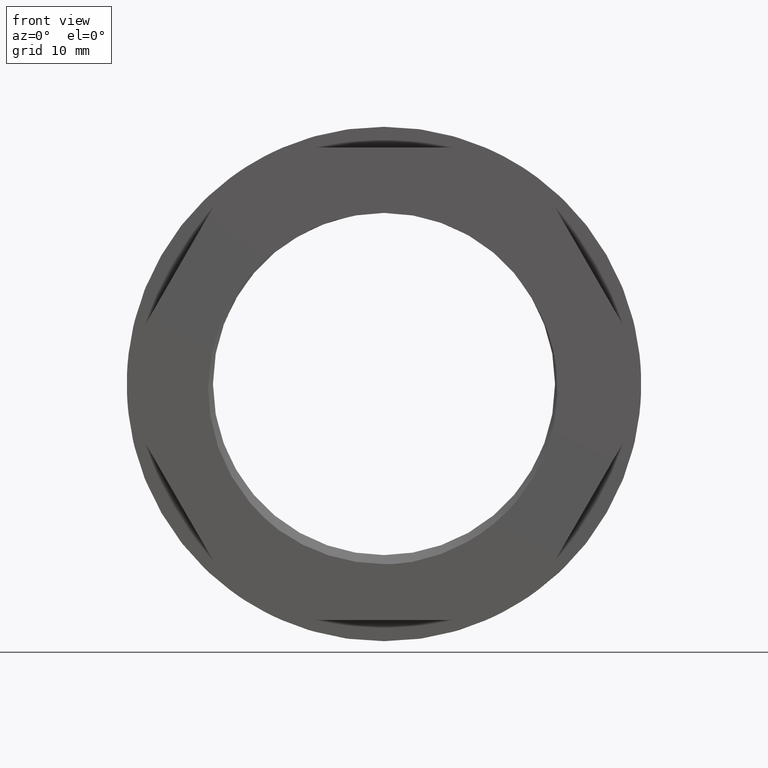
[diagram: clean part render]
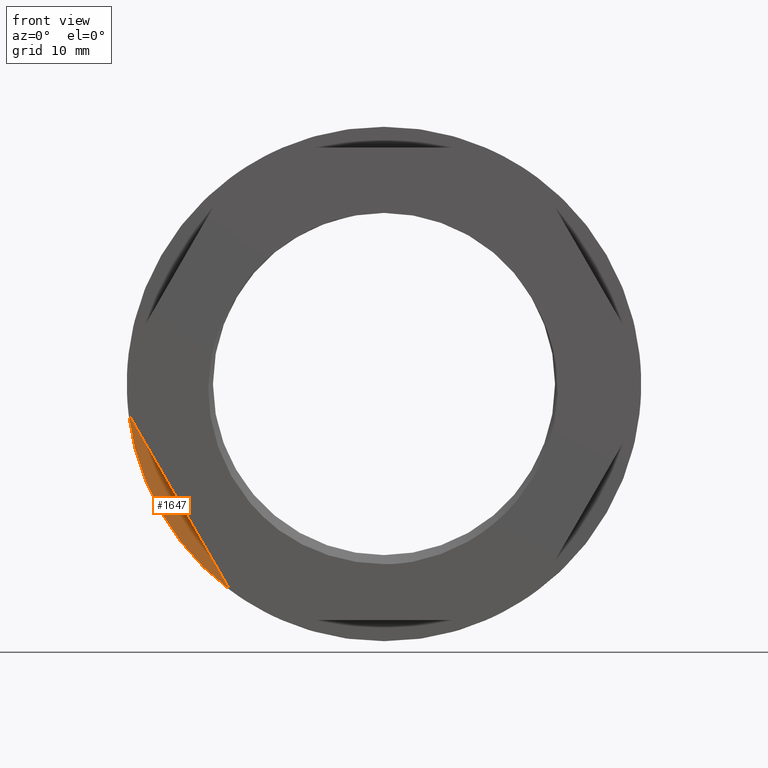
[diagram: same view with one face highlighted and labeled with its STEP entity id]
A machine part, front view. The second image highlights one B-rep face of the part: STEP entity #1647.
In plain terms, the highlighted planar face has unit normal (0, 1, 0).
Its self-contained STEP definition (entity closure, byte-faithful):
#42 = CARTESIAN_POINT ( 'NONE',  ( -22.68993497167885200, -16.80000000000000100, 97.30012019138158100 ) ) ;
#55 = CARTESIAN_POINT ( 'NONE',  ( -13.68313198726764700, -16.80000000000000100, 81.69987980861837700 ) ) ;
#114 = DIRECTION ( 'NONE',  ( 0.0000000000000000000, 1.000000000000000000, 0.0000000000000000000 ) ) ;
#117 = DIRECTION ( 'NONE',  ( 0.0000000000000000000, 0.0000000000000000000, 1.000000000000000000 ) ) ;
#148 = CARTESIAN_POINT ( 'NONE',  ( 0.0000000000000000000, -16.80000000000000100, 100.0000000000000000 ) ) ;
#183 = LINE ( 'NONE', #186, #1762 ) ;
#186 = CARTESIAN_POINT ( 'NONE',  ( -23.28524655239662200, -16.79999999999999700, 98.33123009551890400 ) ) ;
#191 = DIRECTION ( 'NONE',  ( 0.4999999999999998900, 0.0000000000000000000, -0.8660254037844387100 ) ) ;
#314 = VERTEX_POINT ( 'NONE', #42 ) ;
#318 = VERTEX_POINT ( 'NONE', #55 ) ;
#351 = EDGE_LOOP ( 'NONE', ( #538, #525 ) ) ;
#525 = ORIENTED_EDGE ( 'NONE', *, *, #1535, .F. ) ;
#538 = ORIENTED_EDGE ( 'NONE', *, *, #1519, .F. ) ;
#1170 = FACE_OUTER_BOUND ( 'NONE', #351, .T. ) ;
#1172 = PLANE ( 'NONE',  #1701 ) ;
#1173 = CARTESIAN_POINT ( 'NONE',  ( 0.0000000000000000000, -16.80000000000000100, 79.04999999999999700 ) ) ;
#1176 = DIRECTION ( 'NONE',  ( 0.0000000000000000000, -0.0000000000000000000, 1.000000000000000000 ) ) ;
#1177 = DIRECTION ( 'NONE',  ( 0.0000000000000000000, 1.000000000000000000, 0.0000000000000000000 ) ) ;
#1519 = EDGE_CURVE ( 'NONE', #318, #314, #1761, .T. ) ;
#1535 = EDGE_CURVE ( 'NONE', #314, #318, #183, .T. ) ;
#1647 = ADVANCED_FACE ( 'NONE', ( #1170 ), #1172, .F. ) ;
#1701 = AXIS2_PLACEMENT_3D ( 'NONE', #1173, #1177, #1176 ) ;
#1760 = AXIS2_PLACEMENT_3D ( 'NONE', #148, #114, #117 ) ;
#1761 = CIRCLE ( 'NONE', #1760, 22.85000000000000900 ) ;
#1762 = VECTOR ( 'NONE', #191, 1000.000000000000000 ) ;